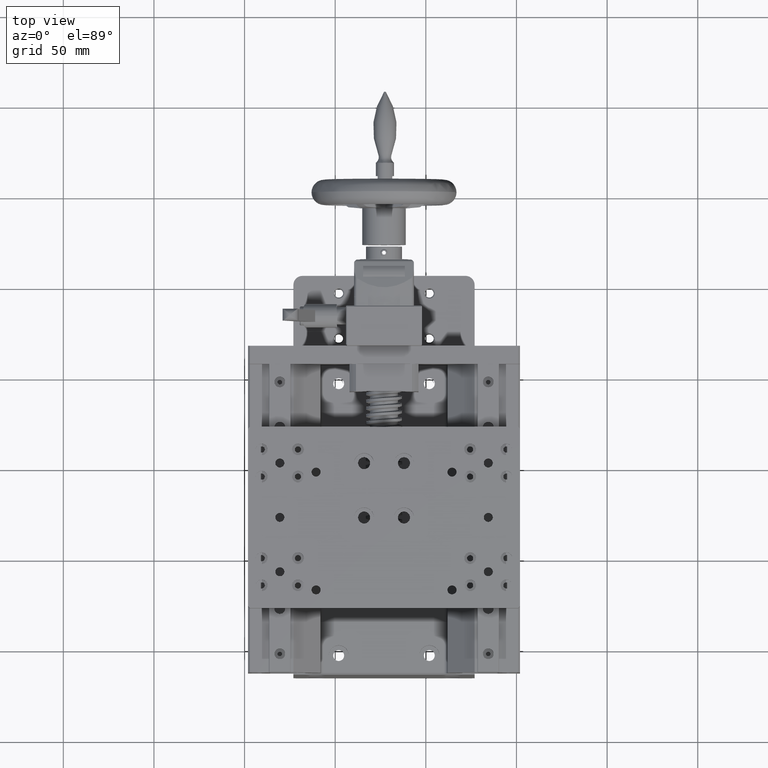
[diagram: clean part render]
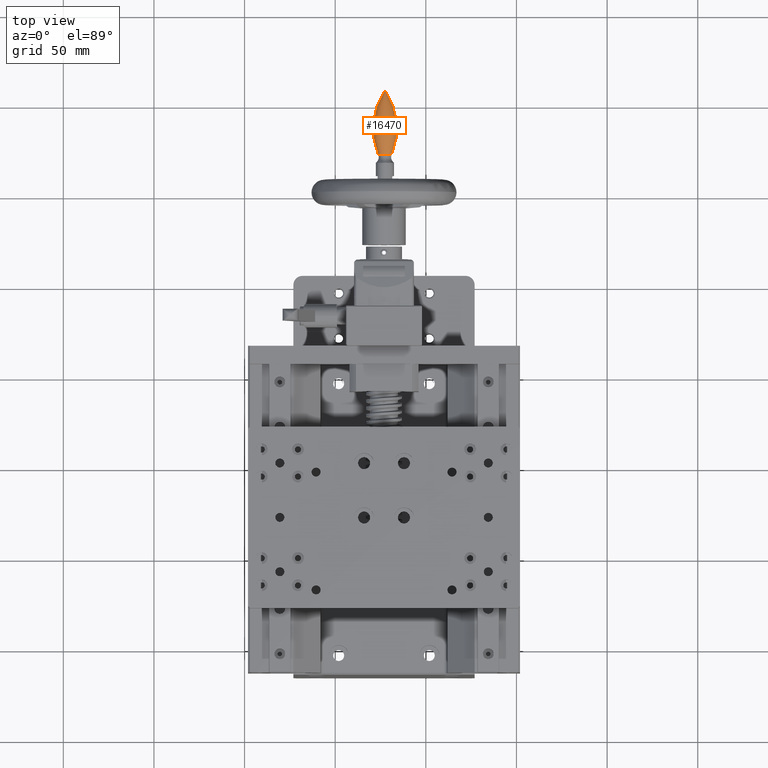
[diagram: same view with one face highlighted and labeled with its STEP entity id]
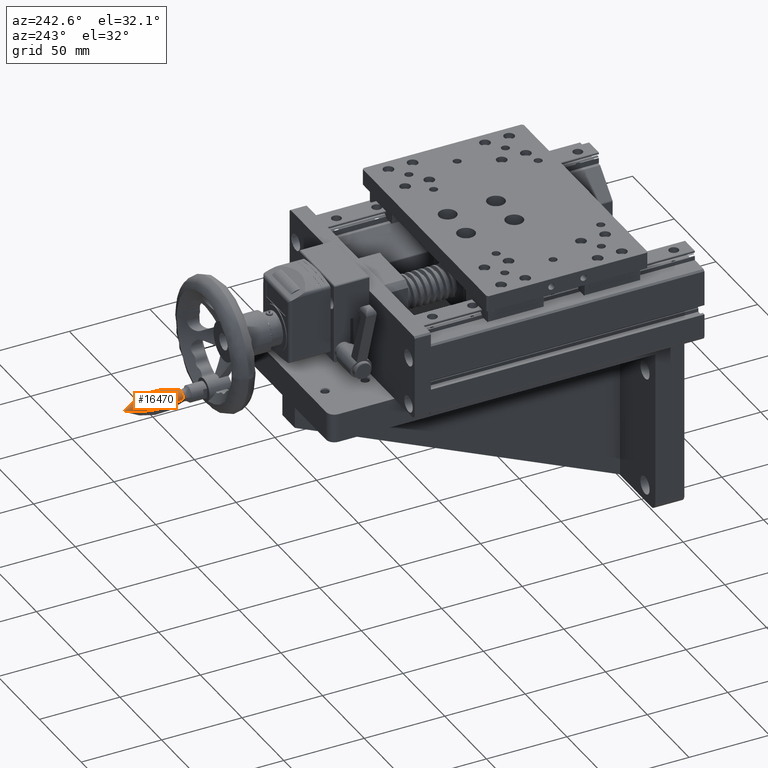
[diagram: same view with one face highlighted and labeled with its STEP entity id]
A machine part, top view. The second image highlights one B-rep face of the part: STEP entity #16470.
A second angle (auxiliary view) of the same face is appended — the face is thin or edge-on in the first view.
In plain terms, the highlighted toroidal blend (fillet) surface has major radius 30.5 mm and minor (blend) radius 37 mm.
Its self-contained STEP definition (entity closure, byte-faithful):
#733 = DIRECTION ( 'NONE',  ( -9.293873982808663683E-16, -1.000000000000000000, -4.310705310543604489E-16 ) ) ;
#3143 = CARTESIAN_POINT ( 'NONE',  ( -22.13875124844459563, 206.7865302544039423, 64.51269509535306668 ) ) ;
#3683 = DIRECTION ( 'NONE',  ( 0.01868160997700466994, 4.136328492402187834E-16, -0.9998254834963284932 ) ) ;
#4542 = ORIENTED_EDGE ( 'NONE', *, *, #13547, .T. ) ;
#4543 = TOROIDAL_SURFACE ( 'NONE', #25536, -30.50000000000000000, 37.00000000000000000 ) ;
#4796 = AXIS2_PLACEMENT_3D ( 'NONE', #8454, #733, #18599 ) ;
#5223 = DIRECTION ( 'NONE',  ( -0.9998254834963286042, 0.000000000000000000, -0.01868160997700450687 ) ) ;
#5754 = CIRCLE ( 'NONE', #25160, 37.00000000000000000 ) ;
#6632 = DIRECTION ( 'NONE',  ( -0.9998254834963284932, 9.372782963752995387E-16, -0.01868160997700382686 ) ) ;
#7405 = AXIS2_PLACEMENT_3D ( 'NONE', #28522, #28341, #5223 ) ;
#7950 = VERTEX_POINT ( 'NONE', #26563 ) ;
#8454 = CARTESIAN_POINT ( 'NONE',  ( -22.55666332995906842, 206.7865302544039423, 64.50488646210614263 ) ) ;
#8560 = CARTESIAN_POINT ( 'NONE',  ( 7.938013916678931636, 186.4622048810348076, 65.07467556640476403 ) ) ;
#8722 = DIRECTION ( 'NONE',  ( -0.9998254834963283821, 0.000000000000000000, -0.01868160997700483994 ) ) ;
#9614 = CARTESIAN_POINT ( 'NONE',  ( -18.86840466529075755, 172.3158643643191397, 64.57380109871522222 ) ) ;
#12182 = FACE_OUTER_BOUND ( 'NONE', #31151, .T. ) ;
#12561 = ORIENTED_EDGE ( 'NONE', *, *, #15556, .F. ) ;
#13011 = CARTESIAN_POINT ( 'NONE',  ( -26.24492199462743969, 172.3158643643191397, 64.43597182549704883 ) ) ;
#13056 = VERTEX_POINT ( 'NONE', #3143 ) ;
#13547 = EDGE_CURVE ( 'NONE', #13056, #7950, #24198, .T. ) ;
#14165 = AXIS2_PLACEMENT_3D ( 'NONE', #8560, #3683, #8722 ) ;
#15556 = EDGE_CURVE ( 'NONE', #23325, #7950, #24972, .T. ) ;
#16005 = CIRCLE ( 'NONE', #7405, 3.688902439024388080 ) ;
#16470 = ADVANCED_FACE ( 'NONE', ( #12182 ), #4543, .T. ) ;
#18599 = DIRECTION ( 'NONE',  ( -0.9998254834963288262, 0.000000000000000000, -0.01868160997698798537 ) ) ;
#21999 = DIRECTION ( 'NONE',  ( 9.293873982808663683E-16, 1.000000000000000000, 4.310705310543604489E-16 ) ) ;
#23030 = ORIENTED_EDGE ( 'NONE', *, *, #25131, .T. ) ;
#23325 = VERTEX_POINT ( 'NONE', #13011 ) ;
#24198 = CIRCLE ( 'NONE', #4796, 0.4179850267999427049 ) ;
#24369 = DIRECTION ( 'NONE',  ( -0.01868160997700479137, -4.136328492402186355E-16, 0.9998254834963284932 ) ) ;
#24972 = CIRCLE ( 'NONE', #14165, 37.00000000000000000 ) ;
#25131 = EDGE_CURVE ( 'NONE', #31530, #13056, #5754, .T. ) ;
#25160 = AXIS2_PLACEMENT_3D ( 'NONE', #29414, #24369, #27404 ) ;
#25517 = EDGE_CURVE ( 'NONE', #23325, #31530, #16005, .T. ) ;
#25536 = AXIS2_PLACEMENT_3D ( 'NONE', #29739, #21999, #6632 ) ;
#25657 = ORIENTED_EDGE ( 'NONE', *, *, #25517, .T. ) ;
#26563 = CARTESIAN_POINT ( 'NONE',  ( -22.97457541147354831, 206.7865302544039423, 64.49707782885923280 ) ) ;
#27404 = DIRECTION ( 'NONE',  ( 0.9998254834963283821, 0.000000000000000000, 0.01868160997700483994 ) ) ;
#28341 = DIRECTION ( 'NONE',  ( 9.293873982808663683E-16, 1.000000000000000000, 4.310705310543604489E-16 ) ) ;
#28522 = CARTESIAN_POINT ( 'NONE',  ( -22.55666332995910039, 172.3158643643191397, 64.50488646210612842 ) ) ;
#29414 = CARTESIAN_POINT ( 'NONE',  ( -53.05134057659710578, 186.4622048810348645, 63.93509735780748571 ) ) ;
#29739 = CARTESIAN_POINT ( 'NONE',  ( -22.55666332995908618, 186.4622048810348360, 64.50488646210612842 ) ) ;
#31151 = EDGE_LOOP ( 'NONE', ( #25657, #23030, #4542, #12561 ) ) ;
#31530 = VERTEX_POINT ( 'NONE', #9614 ) ;